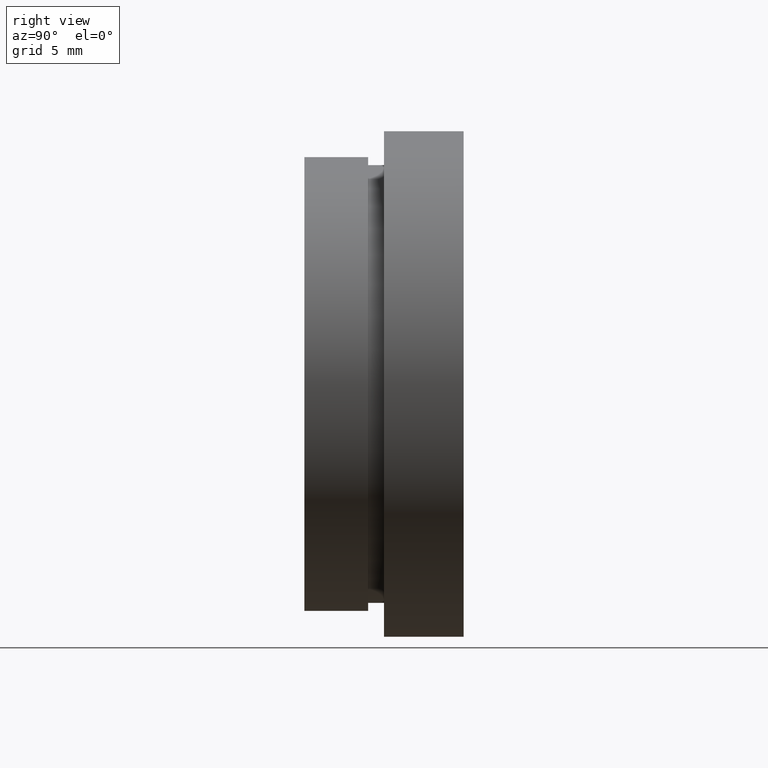
[diagram: clean part render]
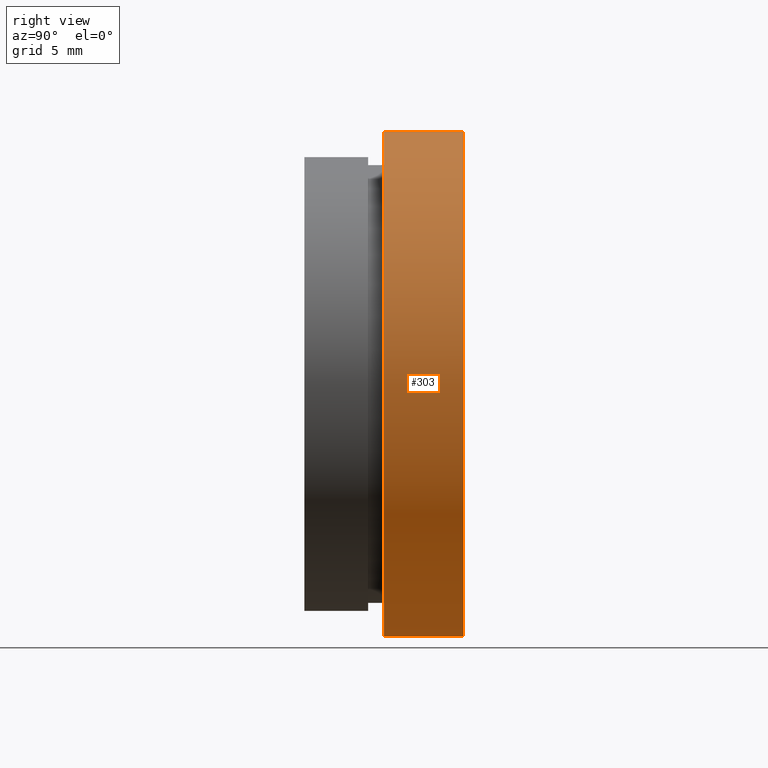
[diagram: same view with one face highlighted and labeled with its STEP entity id]
A machine part, right view. The second image highlights one B-rep face of the part: STEP entity #303.
In plain terms, the highlighted cylindrical surface (partial cylindrical patch) has radius 15.875 mm, axis along (-0, 1, -0).
Its self-contained STEP definition (entity closure, byte-faithful):
#6 = VECTOR ( 'NONE', #512, 1000.000000000000000 ) ;
#22 = CIRCLE ( 'NONE', #177, 15.87500000000000000 ) ;
#26 = EDGE_CURVE ( 'NONE', #592, #357, #28, .T. ) ;
#28 = LINE ( 'NONE', #285, #243 ) ;
#38 = ORIENTED_EDGE ( 'NONE', *, *, #26, .F. ) ;
#51 = EDGE_CURVE ( 'NONE', #357, #211, #433, .T. ) ;
#62 = DIRECTION ( 'NONE',  ( -0.0000000000000000000, 1.000000000000000000, -0.0000000000000000000 ) ) ;
#63 = EDGE_CURVE ( 'NONE', #592, #615, #22, .T. ) ;
#70 = EDGE_LOOP ( 'NONE', ( #227, #572, #180, #38 ) ) ;
#74 = CARTESIAN_POINT ( 'NONE',  ( 0.0000000000000000000, 10.00000000000000000, 15.87500000000000000 ) ) ;
#126 = CARTESIAN_POINT ( 'NONE',  ( 1.944126793646423200E-015, 13.74468085106383300, -15.87500000000000000 ) ) ;
#130 = LINE ( 'NONE', #126, #6 ) ;
#134 = CARTESIAN_POINT ( 'NONE',  ( 1.944126793646423200E-015, 10.00000000000000000, -15.87500000000000000 ) ) ;
#141 = AXIS2_PLACEMENT_3D ( 'NONE', #326, #190, #607 ) ;
#177 = AXIS2_PLACEMENT_3D ( 'NONE', #576, #195, #216 ) ;
#180 = ORIENTED_EDGE ( 'NONE', *, *, #51, .F. ) ;
#190 = DIRECTION ( 'NONE',  ( -0.0000000000000000000, 1.000000000000000000, -0.0000000000000000000 ) ) ;
#195 = DIRECTION ( 'NONE',  ( -0.0000000000000000000, 1.000000000000000000, -0.0000000000000000000 ) ) ;
#211 = VERTEX_POINT ( 'NONE', #134 ) ;
#216 = DIRECTION ( 'NONE',  ( 0.0000000000000000000, 0.0000000000000000000, 1.000000000000000000 ) ) ;
#227 = ORIENTED_EDGE ( 'NONE', *, *, #63, .T. ) ;
#231 = CYLINDRICAL_SURFACE ( 'NONE', #141, 15.87500000000000000 ) ;
#243 = VECTOR ( 'NONE', #62, 1000.000000000000000 ) ;
#263 = FACE_OUTER_BOUND ( 'NONE', #70, .T. ) ;
#279 = CARTESIAN_POINT ( 'NONE',  ( 0.0000000000000000000, 5.000000000000000900, 15.87500000000000000 ) ) ;
#285 = CARTESIAN_POINT ( 'NONE',  ( 0.0000000000000000000, 13.74468085106383300, 15.87500000000000000 ) ) ;
#303 = ADVANCED_FACE ( 'NONE', ( #263 ), #231, .T. ) ;
#326 = CARTESIAN_POINT ( 'NONE',  ( 0.0000000000000000000, 13.74468085106383300, 0.0000000000000000000 ) ) ;
#357 = VERTEX_POINT ( 'NONE', #74 ) ;
#368 = EDGE_CURVE ( 'NONE', #615, #211, #130, .T. ) ;
#398 = CARTESIAN_POINT ( 'NONE',  ( 1.944126793646423200E-015, 5.000000000000000900, -15.87500000000000000 ) ) ;
#433 = CIRCLE ( 'NONE', #439, 15.87500000000000000 ) ;
#439 = AXIS2_PLACEMENT_3D ( 'NONE', #514, #463, #486 ) ;
#463 = DIRECTION ( 'NONE',  ( -0.0000000000000000000, 1.000000000000000000, -0.0000000000000000000 ) ) ;
#486 = DIRECTION ( 'NONE',  ( 0.0000000000000000000, 0.0000000000000000000, 1.000000000000000000 ) ) ;
#512 = DIRECTION ( 'NONE',  ( -0.0000000000000000000, 1.000000000000000000, -0.0000000000000000000 ) ) ;
#514 = CARTESIAN_POINT ( 'NONE',  ( 0.0000000000000000000, 10.00000000000000000, 0.0000000000000000000 ) ) ;
#572 = ORIENTED_EDGE ( 'NONE', *, *, #368, .T. ) ;
#576 = CARTESIAN_POINT ( 'NONE',  ( 0.0000000000000000000, 5.000000000000000900, 0.0000000000000000000 ) ) ;
#592 = VERTEX_POINT ( 'NONE', #279 ) ;
#607 = DIRECTION ( 'NONE',  ( 0.0000000000000000000, 0.0000000000000000000, 1.000000000000000000 ) ) ;
#615 = VERTEX_POINT ( 'NONE', #398 ) ;